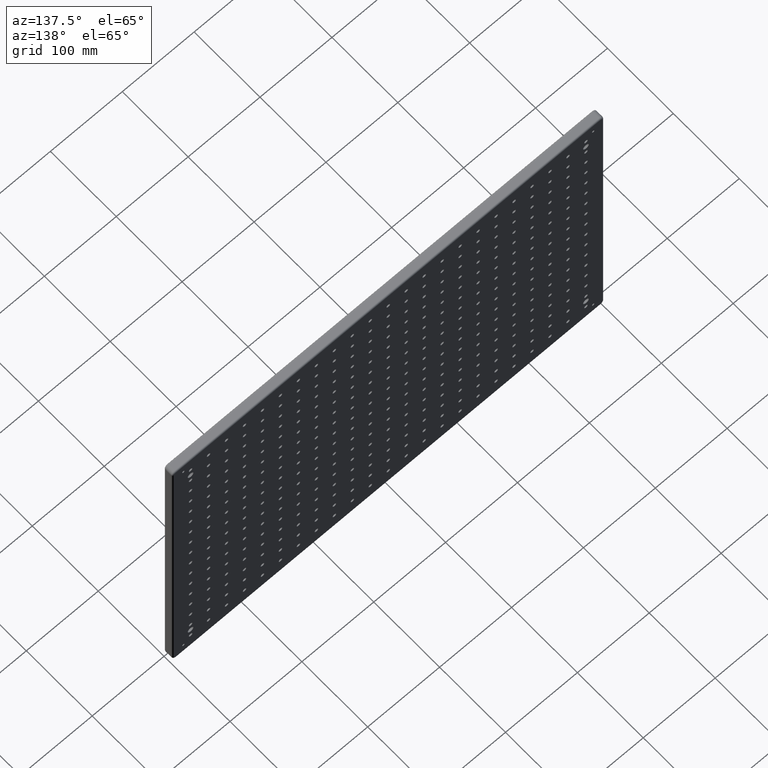
[diagram: clean part render]
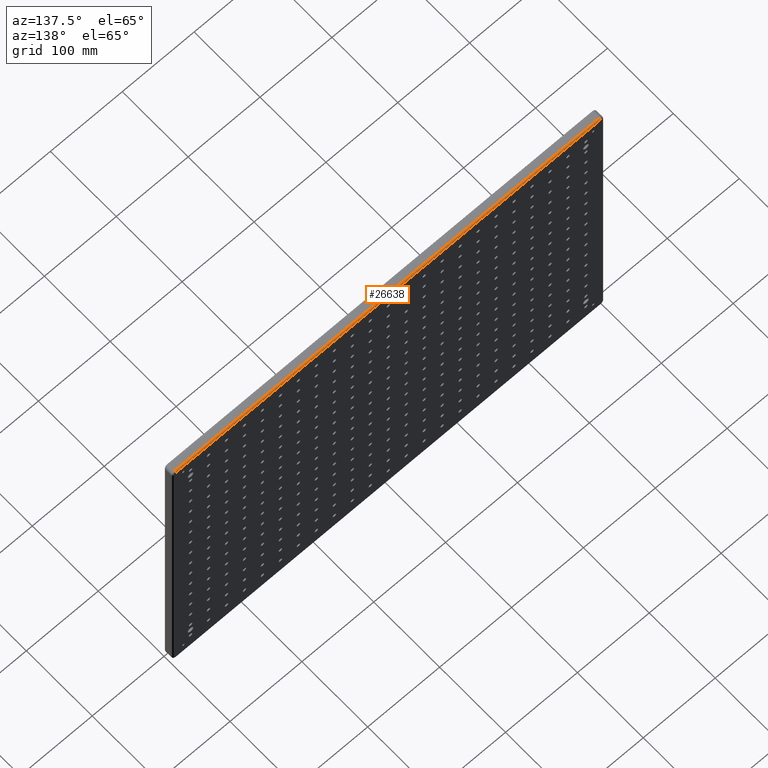
[diagram: same view with one face highlighted and labeled with its STEP entity id]
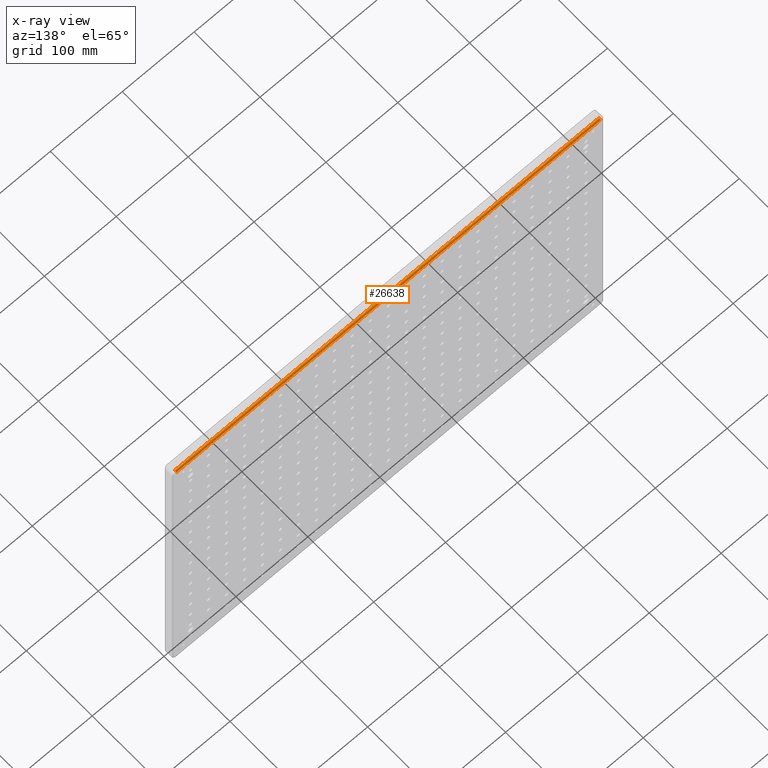
[diagram: x-ray of the same camera — body ghosted, the highlighted face saturated]
A machine part, auxiliary view. The second image highlights one B-rep face of the part: STEP entity #26638.
The next image is the same camera in x-ray: the body ghosted, the highlighted face saturated — about 0% of this face is hidden behind the body in this view.
In plain terms, the highlighted cylindrical surface (edge-blend (fillet) strip) has radius 2 mm, axis along (-1, 0, 0).
Its self-contained STEP definition (entity closure, byte-faithful):
#1450 = CARTESIAN_POINT ( 'NONE',  ( -295.0000000000000000, 11.00000000000000000, 225.0000000000000300 ) ) ;
#2805 = AXIS2_PLACEMENT_3D ( 'NONE', #4144, #18074, #8789 ) ;
#3170 = CYLINDRICAL_SURFACE ( 'NONE', #10261, 2.000000000000001800 ) ;
#4144 = CARTESIAN_POINT ( 'NONE',  ( -295.0000000000000000, 11.00000000000000000, 223.0000000000000300 ) ) ;
#4834 = VECTOR ( 'NONE', #21923, 1000.000000000000000 ) ;
#5716 = CARTESIAN_POINT ( 'NONE',  ( 295.0000000000000000, 11.00000000000000000, 222.9999999999999100 ) ) ;
#5795 = VERTEX_POINT ( 'NONE', #30351 ) ;
#5930 = LINE ( 'NONE', #6839, #21402 ) ;
#6115 = EDGE_LOOP ( 'NONE', ( #24376, #20848, #13675, #12635 ) ) ;
#6147 = CIRCLE ( 'NONE', #18501, 2.000000000000001800 ) ;
#6839 = CARTESIAN_POINT ( 'NONE',  ( 295.0000000000000000, 13.00000000000000000, 223.0000000000000300 ) ) ;
#7962 = FACE_OUTER_BOUND ( 'NONE', #6115, .T. ) ;
#8165 = EDGE_CURVE ( 'NONE', #5795, #26182, #21464, .T. ) ;
#8413 = DIRECTION ( 'NONE',  ( -1.000000000000000000, 0.0000000000000000000, 0.0000000000000000000 ) ) ;
#8789 = DIRECTION ( 'NONE',  ( 0.0000000000000000000, 0.0000000000000000000, 1.000000000000000000 ) ) ;
#10261 = AXIS2_PLACEMENT_3D ( 'NONE', #29149, #12302, #17133 ) ;
#11711 = VERTEX_POINT ( 'NONE', #20028 ) ;
#12302 = DIRECTION ( 'NONE',  ( -1.000000000000000000, 0.0000000000000000000, 0.0000000000000000000 ) ) ;
#12635 = ORIENTED_EDGE ( 'NONE', *, *, #8165, .F. ) ;
#12939 = CARTESIAN_POINT ( 'NONE',  ( 295.0000000000000000, 13.00000000000000000, 223.0000000000000300 ) ) ;
#13675 = ORIENTED_EDGE ( 'NONE', *, *, #15365, .F. ) ;
#15365 = EDGE_CURVE ( 'NONE', #26182, #11711, #22537, .T. ) ;
#15509 = EDGE_CURVE ( 'NONE', #11711, #16673, #5930, .T. ) ;
#16673 = VERTEX_POINT ( 'NONE', #12939 ) ;
#17133 = DIRECTION ( 'NONE',  ( 0.0000000000000000000, 0.0000000000000000000, 1.000000000000000000 ) ) ;
#17892 = DIRECTION ( 'NONE',  ( 0.0000000000000000000, 0.0000000000000000000, 1.000000000000000000 ) ) ;
#18074 = DIRECTION ( 'NONE',  ( -1.000000000000000000, 0.0000000000000000000, 0.0000000000000000000 ) ) ;
#18501 = AXIS2_PLACEMENT_3D ( 'NONE', #5716, #8413, #17892 ) ;
#19537 = CARTESIAN_POINT ( 'NONE',  ( -295.0000000000000000, 11.00000000000000000, 225.0000000000000300 ) ) ;
#20028 = CARTESIAN_POINT ( 'NONE',  ( -295.0000000000000000, 13.00000000000000000, 223.0000000000000300 ) ) ;
#20621 = EDGE_CURVE ( 'NONE', #5795, #16673, #6147, .T. ) ;
#20848 = ORIENTED_EDGE ( 'NONE', *, *, #15509, .F. ) ;
#21402 = VECTOR ( 'NONE', #25838, 1000.000000000000000 ) ;
#21464 = LINE ( 'NONE', #19537, #4834 ) ;
#21923 = DIRECTION ( 'NONE',  ( -1.000000000000000000, -0.0000000000000000000, -0.0000000000000000000 ) ) ;
#22537 = CIRCLE ( 'NONE', #2805, 2.000000000000001800 ) ;
#24376 = ORIENTED_EDGE ( 'NONE', *, *, #20621, .T. ) ;
#25838 = DIRECTION ( 'NONE',  ( 1.000000000000000000, -0.0000000000000000000, 0.0000000000000000000 ) ) ;
#26182 = VERTEX_POINT ( 'NONE', #1450 ) ;
#26638 = ADVANCED_FACE ( 'NONE', ( #7962 ), #3170, .T. ) ;
#29149 = CARTESIAN_POINT ( 'NONE',  ( -295.0000000000000000, 11.00000000000000000, 223.0000000000000300 ) ) ;
#30351 = CARTESIAN_POINT ( 'NONE',  ( 295.0000000000000000, 11.00000000000000000, 224.9999999999999100 ) ) ;